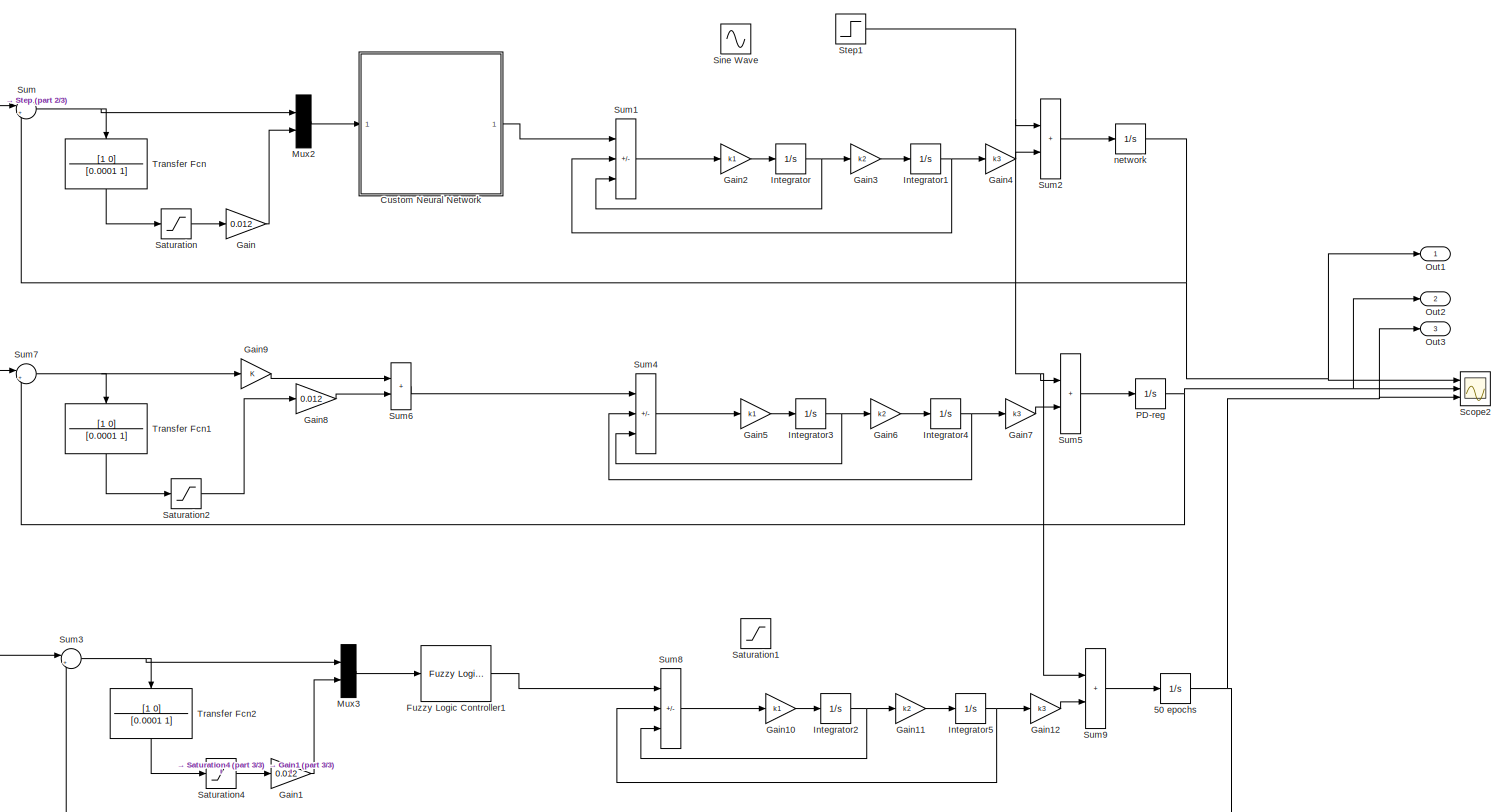
[diagram: root canvas - part 1/3, most of the canvas]
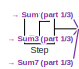
[diagram: root canvas - part 2/3, top left region]
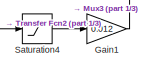
[diagram: root canvas - part 3/3, bottom left region]
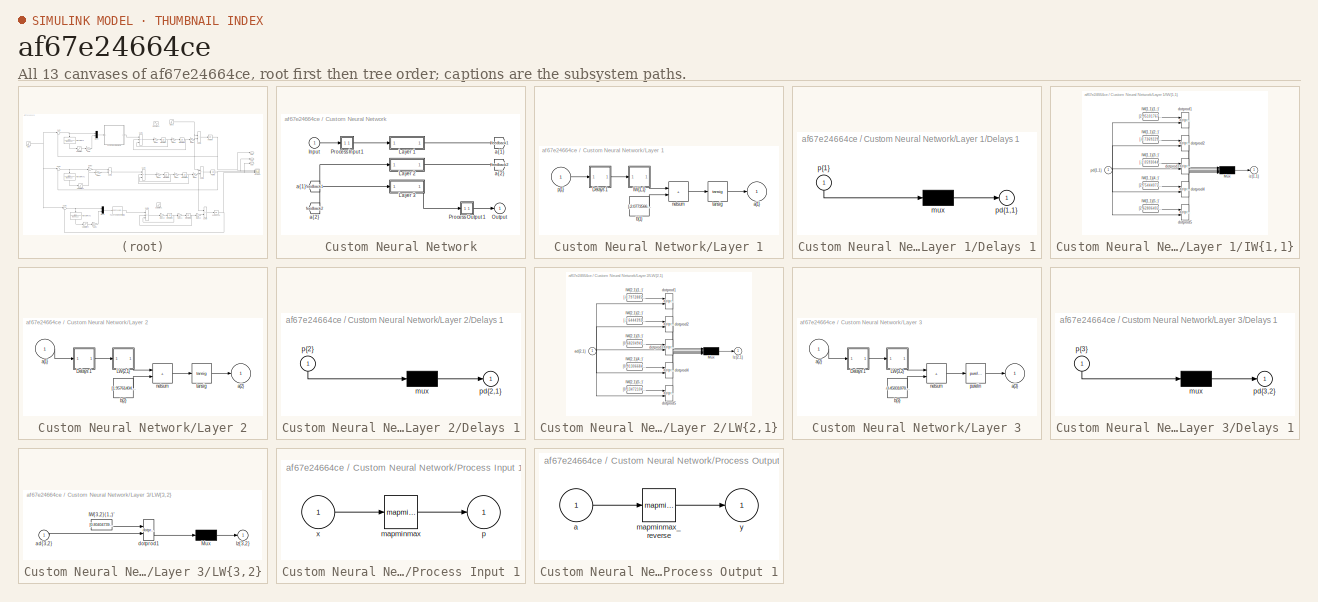
[diagram: thumbnail index - all 13 canvases of the model, root first then tree order]
MODEL slx_af67e24664ce
KIND model
CONFIG AbsTol = auto
CONFIG EnableMultiTasking = off
CONFIG FixedStep = 1e-4
CONFIG MaxStep = auto
CONFIG MinStep = auto
CONFIG RelTol = 1e-3
CONFIG SampleTimeConstraint = Unconstrained
CONFIG SolverName = VariableStepAuto
CONFIG StartTime = 0.0
CONFIG StopTime = 0.7
BLOCK [Integrator] 50 epochs
  Commented = on
  Ports = [1, 1]
BLOCK [SubSystem] Custom Neural Network
  Ports = [1, 1]
  RequestExecContextInheritance = off
BLOCK [From] Custom Neural Network/ a{1} 
  GotoTag = feedback1
BLOCK [From] Custom Neural Network/ a{2} 
  GotoTag = feedback2
BLOCK [Inport] Custom Neural Network/Input
  PortDimensions = 2
BLOCK [SubSystem] Custom Neural Network/Layer 1
  Ports = [1, 1]
  RequestExecContextInheritance = off
BLOCK [SubSystem] Custom Neural Network/Layer 1/Delays 1
  Ports = [1, 1]
  RequestExecContextInheritance = off
BLOCK [Mux] Custom Neural Network/Layer 1/Delays 1/mux
  Inputs = 1
  Ports = [1, 1]
BLOCK [Outport] Custom Neural Network/Layer 1/Delays 1/pd{1,1}
BLOCK [Inport] Custom Neural Network/Layer 1/Delays 1/p{1}
  NameLocation = left
  PortDimensions = 2
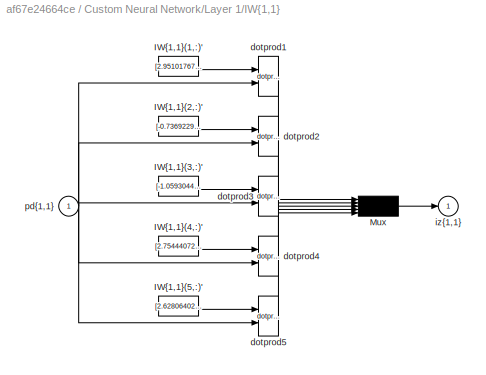
BLOCK [SubSystem] Custom Neural Network/Layer 1/IW{1,1}
  Ports = [1, 1]
  RequestExecContextInheritance = off
BLOCK [Constant] Custom Neural Network/Layer 1/IW{1,1}/IW{1,1}(1,:)'
  Value = [2.951017671237043060727955889888107776641845703125;0.83624442864067194403077110109734348952770233154296875]
BLOCK [Constant] Custom Neural Network/Layer 1/IW{1,1}/IW{1,1}(2,:)'
  Value = [-0.73692291401643783554931133039644919335842132568359375;1.96948474855739874556093127466738224029541015625]
BLOCK [Constant] Custom Neural Network/Layer 1/IW{1,1}/IW{1,1}(3,:)'
  Value = [-1.0593044915856066889858766444376669824123382568359375;1.6448405807777659592971986057818867266178131103515625]
BLOCK [Constant] Custom Neural Network/Layer 1/IW{1,1}/IW{1,1}(4,:)'
  Value = [2.75444072045885857136227059527300298213958740234375;-1.009440193116874606715782647370360791683197021484375]
BLOCK [Constant] Custom Neural Network/Layer 1/IW{1,1}/IW{1,1}(5,:)'
  Value = [2.62806402824123619410556784714572131633758544921875;1.10383319521941469787407186231575906276702880859375]
BLOCK [Mux] Custom Neural Network/Layer 1/IW{1,1}/Mux
  Inputs = 5
  Ports = [5, 1]
BLOCK [Reference] Custom Neural Network/Layer 1/IW{1,1}/dotprod1  REF=neural/Weight Functions/dotprod
  Ports = [2, 1]
  SourceBlock = neural/Weight Functions/dotprod
  SourceProductBaseCode = NN
  SourceType = DOTPROD
BLOCK [Reference] Custom Neural Network/Layer 1/IW{1,1}/dotprod2  REF=neural/Weight Functions/dotprod
  Ports = [2, 1]
  SourceBlock = neural/Weight Functions/dotprod
  SourceProductBaseCode = NN
  SourceType = DOTPROD
BLOCK [Reference] Custom Neural Network/Layer 1/IW{1,1}/dotprod3  REF=neural/Weight Functions/dotprod
  Ports = [2, 1]
  SourceBlock = neural/Weight Functions/dotprod
  SourceProductBaseCode = NN
  SourceType = DOTPROD
BLOCK [Reference] Custom Neural Network/Layer 1/IW{1,1}/dotprod4  REF=neural/Weight Functions/dotprod
  Ports = [2, 1]
  SourceBlock = neural/Weight Functions/dotprod
  SourceProductBaseCode = NN
  SourceType = DOTPROD
BLOCK [Reference] Custom Neural Network/Layer 1/IW{1,1}/dotprod5  REF=neural/Weight Functions/dotprod
  Ports = [2, 1]
  SourceBlock = neural/Weight Functions/dotprod
  SourceProductBaseCode = NN
  SourceType = DOTPROD
BLOCK [Outport] Custom Neural Network/Layer 1/IW{1,1}/iz{1,1}
BLOCK [Inport] Custom Neural Network/Layer 1/IW{1,1}/pd{1,1}
  PortDimensions = 2
BLOCK [Outport] Custom Neural Network/Layer 1/a{1}
  InitialOutput = [0;0;0;0;0]
BLOCK [Constant] Custom Neural Network/Layer 1/b{1}
  Value = [-2.07735668645178161995090704294852912425994873046875;1.96406519819106062385571931372396647930145263671875;-0.208615303188971423775655011922935955226421356201171875;1.606900734332708413631962685030885040760040283203125;3.23070511748839894750062740058638155460357666015625]
BLOCK [Sum] Custom Neural Network/Layer 1/netsum
  IconShape = rectangular
  InputSameDT = on
  Inputs = 2
  OutDataTypeStr = Inherit: Same as first input
  Ports = [2, 1]
  SaturateOnIntegerOverflow = on
BLOCK [Inport] Custom Neural Network/Layer 1/p{1}
  PortDimensions = 2
BLOCK [Reference] Custom Neural Network/Layer 1/tansig  REF=neural/Transfer Functions/tansig
  Ports = [1, 1]
  SourceBlock = neural/Transfer Functions/tansig
  SourceProductBaseCode = NN
  SourceType = TANSIG
BLOCK [SubSystem] Custom Neural Network/Layer 2
  Ports = [1, 1]
  RequestExecContextInheritance = off
BLOCK [SubSystem] Custom Neural Network/Layer 2/Delays 1
  Ports = [1, 1]
  RequestExecContextInheritance = off
BLOCK [Mux] Custom Neural Network/Layer 2/Delays 1/mux
  Inputs = 1
  Ports = [1, 1]
BLOCK [Outport] Custom Neural Network/Layer 2/Delays 1/pd{2,1}
BLOCK [Inport] Custom Neural Network/Layer 2/Delays 1/p{2}
  NameLocation = left
  PortDimensions = 5
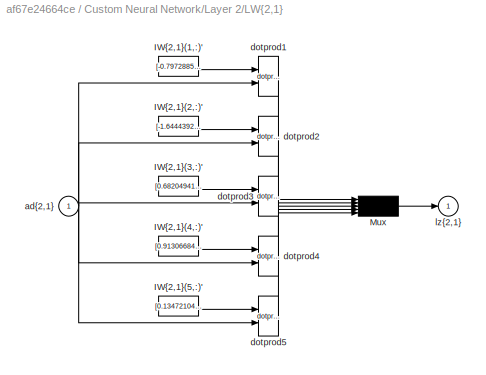
BLOCK [SubSystem] Custom Neural Network/Layer 2/LW{2,1}
  Ports = [1, 1]
  RequestExecContextInheritance = off
BLOCK [Constant] Custom Neural Network/Layer 2/LW{2,1}/IW{2,1}(1,:)'
  Value = [-0.79728853613596128990792522017727605998516082763671875;0.310841683658386991329081183721427805721759796142578125;-0.1520449265423351736803425637845066376030445098876953125;1.4627637117169596248089646906009875237941741943359375;-0.89696378191114478628520600977935828268527984619140625]
BLOCK [Constant] Custom Neural Network/Layer 2/LW{2,1}/IW{2,1}(2,:)'
  Value = [-1.64443925620102060491944939712993800640106201171875;0.9544527634843813501674958388321101665496826171875;-0.591305881399928789932118888827972114086151123046875;-0.92841236542470240156177396784187294542789459228515625;-1.63495941461686555840060464106500148773193359375]
BLOCK [Constant] Custom Neural Network/Layer 2/LW{2,1}/IW{2,1}(3,:)'
  Value = [0.6820494103530945206870228503248654305934906005859375;0.1503276885593718137368313136903452686965465545654296875;0.58642540305399448730128142415196634829044342041015625;1.571446894038057262577012807014398276805877685546875;-0.54654416449461973304124740025145001709461212158203125]
BLOCK [Constant] Custom Neural Network/Layer 2/LW{2,1}/IW{2,1}(4,:)'
  Value = [0.91306684716414243663251681937254033982753753662109375;1.18792269902880942566980593255721032619476318359375;1.5319421879284746967897490321774967014789581298828125;-0.1889887057797368929978887308607227168977260589599609375;0.7735302156303893728050979916588403284549713134765625]
BLOCK [Constant] Custom Neural Network/Layer 2/LW{2,1}/IW{2,1}(5,:)'
  Value = [0.13472104862914779932481224022922106087207794189453125;0.72613412592082882124344678231864236295223236083984375;-0.52226398729854583979914650626596994698047637939453125;-0.65519149195467163426798151704133488237857818603515625;1.3656469102114601188446840751566924154758453369140625]
BLOCK [Mux] Custom Neural Network/Layer 2/LW{2,1}/Mux
  Inputs = 5
  Ports = [5, 1]
BLOCK [Inport] Custom Neural Network/Layer 2/LW{2,1}/ad{2,1}
  PortDimensions = 5
BLOCK [Reference] Custom Neural Network/Layer 2/LW{2,1}/dotprod1  REF=neural/Weight Functions/dotprod
  Ports = [2, 1]
  SourceBlock = neural/Weight Functions/dotprod
  SourceProductBaseCode = NN
  SourceType = DOTPROD
BLOCK [Reference] Custom Neural Network/Layer 2/LW{2,1}/dotprod2  REF=neural/Weight Functions/dotprod
  Ports = [2, 1]
  SourceBlock = neural/Weight Functions/dotprod
  SourceProductBaseCode = NN
  SourceType = DOTPROD
BLOCK [Reference] Custom Neural Network/Layer 2/LW{2,1}/dotprod3  REF=neural/Weight Functions/dotprod
  Ports = [2, 1]
  SourceBlock = neural/Weight Functions/dotprod
  SourceProductBaseCode = NN
  SourceType = DOTPROD
BLOCK [Reference] Custom Neural Network/Layer 2/LW{2,1}/dotprod4  REF=neural/Weight Functions/dotprod
  Ports = [2, 1]
  SourceBlock = neural/Weight Functions/dotprod
  SourceProductBaseCode = NN
  SourceType = DOTPROD
BLOCK [Reference] Custom Neural Network/Layer 2/LW{2,1}/dotprod5  REF=neural/Weight Functions/dotprod
  Ports = [2, 1]
  SourceBlock = neural/Weight Functions/dotprod
  SourceProductBaseCode = NN
  SourceType = DOTPROD
BLOCK [Outport] Custom Neural Network/Layer 2/LW{2,1}/lz{2,1}
BLOCK [Inport] Custom Neural Network/Layer 2/a{1} 
  PortDimensions = 5
BLOCK [Outport] Custom Neural Network/Layer 2/a{2}
  InitialOutput = [0;0;0;0;0]
BLOCK [Constant] Custom Neural Network/Layer 2/b{2}
  Value = [1.9576140475335208623874905242701061069965362548828125;0.421633297016090702324930816757841967046260833740234375;0.202700740941899659741665118417586199939250946044921875;1.1867518349436083635595196028589271008968353271484375;-2.0243971985427986481909101712517440319061279296875]
BLOCK [Sum] Custom Neural Network/Layer 2/netsum
  IconShape = rectangular
  InputSameDT = on
  Inputs = 2
  OutDataTypeStr = Inherit: Same as first input
  Ports = [2, 1]
  SaturateOnIntegerOverflow = on
BLOCK [Reference] Custom Neural Network/Layer 2/tansig  REF=neural/Transfer Functions/tansig
  Ports = [1, 1]
  SourceBlock = neural/Transfer Functions/tansig
  SourceProductBaseCode = NN
  SourceType = TANSIG
BLOCK [SubSystem] Custom Neural Network/Layer 3
  Ports = [1, 1]
  RequestExecContextInheritance = off
BLOCK [SubSystem] Custom Neural Network/Layer 3/Delays 1
  Ports = [1, 1]
  RequestExecContextInheritance = off
BLOCK [Mux] Custom Neural Network/Layer 3/Delays 1/mux
  Inputs = 1
  Ports = [1, 1]
BLOCK [Outport] Custom Neural Network/Layer 3/Delays 1/pd{3,2}
BLOCK [Inport] Custom Neural Network/Layer 3/Delays 1/p{3}
  NameLocation = left
  PortDimensions = 5
BLOCK [SubSystem] Custom Neural Network/Layer 3/LW{3,2}
  Ports = [1, 1]
  RequestExecContextInheritance = off
BLOCK [Constant] Custom Neural Network/Layer 3/LW{3,2}/IW{3,2}(1,:)'
  Value = [0.80404739059569119152826033314340747892856597900390625;-0.591097353395705571443841108703054487705230712890625;-0.1768445181385183972988528466885327361524105072021484375;0.4597468355824052554936542946961708366870880126953125;1.3416315315107010253115049636107869446277618408203125]
BLOCK [Mux] Custom Neural Network/Layer 3/LW{3,2}/Mux
  Inputs = 1
  Ports = [1, 1]
BLOCK [Inport] Custom Neural Network/Layer 3/LW{3,2}/ad{3,2}
  PortDimensions = 5
BLOCK [Reference] Custom Neural Network/Layer 3/LW{3,2}/dotprod1  REF=neural/Weight Functions/dotprod
  Ports = [2, 1]
  SourceBlock = neural/Weight Functions/dotprod
  SourceProductBaseCode = NN
  SourceType = DOTPROD
BLOCK [Outport] Custom Neural Network/Layer 3/LW{3,2}/lz{3,2}
BLOCK [Inport] Custom Neural Network/Layer 3/a{2} 
  PortDimensions = 5
BLOCK [Outport] Custom Neural Network/Layer 3/a{3}
  InitialOutput = 0
BLOCK [Constant] Custom Neural Network/Layer 3/b{3}
  Value = -0.45831878805649461927629317870014347136020660400390625
BLOCK [Sum] Custom Neural Network/Layer 3/netsum
  IconShape = rectangular
  InputSameDT = on
  Inputs = 2
  OutDataTypeStr = Inherit: Same as first input
  Ports = [2, 1]
  SaturateOnIntegerOverflow = on
BLOCK [Reference] Custom Neural Network/Layer 3/purelin  REF=neural/Transfer Functions/purelin
  Ports = [1, 1]
  SourceBlock = neural/Transfer Functions/purelin
  SourceProductBaseCode = NN
  SourceType = PURELIN
BLOCK [Outport] Custom Neural Network/Output
  InitialOutput = 0
BLOCK [SubSystem] Custom Neural Network/Process Input 1
  Ports = [1, 1]
  RequestExecContextInheritance = off
BLOCK [Reference] Custom Neural Network/Process Input 1/mapminmax  REF=neural/Processing Functions/mapminmax
  Ports = [1, 1]
  SourceBlock = neural/Processing Functions/mapminmax
  SourceProductBaseCode = NN
  SourceType = MAPMINMAX Preprocess
BLOCK [Outport] Custom Neural Network/Process Input 1/p
  PortDimensions = 2
BLOCK [Inport] Custom Neural Network/Process Input 1/x
  PortDimensions = 2
BLOCK [SubSystem] Custom Neural Network/Process Output 1
  Ports = [1, 1]
  RequestExecContextInheritance = off
BLOCK [Inport] Custom Neural Network/Process Output 1/a
  PortDimensions = 1
BLOCK [Reference] Custom Neural Network/Process Output 1/mapminmax_reverse  REF=neural/Processing Functions/mapminmax_reverse
  Ports = [1, 1]
  SourceBlock = neural/Processing Functions/mapminmax_reverse
  SourceProductBaseCode = NN
  SourceType = MAPMINMAX Reverse Process
BLOCK [Outport] Custom Neural Network/Process Output 1/y
  PortDimensions = 1
BLOCK [Goto] Custom Neural Network/a{1}
  GotoTag = feedback1
BLOCK [Goto] Custom Neural Network/a{2}
  GotoTag = feedback2
BLOCK [Reference] Fuzzy Logic Controller1  REF=fuzblock/Fuzzy Logic   (lib defined in mdl_858b3b3e7478)
Controller
  Commented = on
  Ports = [1, 1]
  SourceBlock = fuzblock/Fuzzy Logic \nController
  SourceProductBaseCode = FL
  SourceType = Fuzzy Inference System
BLOCK [Gain] Gain
  Gain = 0.012
BLOCK [Gain] Gain1
  Commented = on
  Gain = 0.012
BLOCK [Gain] Gain10
  Commented = on
  Gain = k1
BLOCK [Gain] Gain11
  Commented = on
  Gain = k2
BLOCK [Gain] Gain12
  Commented = on
  Gain = k3
BLOCK [Gain] Gain2
  Gain = k1
BLOCK [Gain] Gain3
  Gain = k2
BLOCK [Gain] Gain4
  Gain = k3
BLOCK [Gain] Gain5
  Gain = k1
BLOCK [Gain] Gain6
  Gain = k2
BLOCK [Gain] Gain7
  Gain = k3
BLOCK [Gain] Gain8
  Gain = 0.012
BLOCK [Gain] Gain9
BLOCK [Integrator] Integrator
  Ports = [1, 1]
BLOCK [Integrator] Integrator1
  Ports = [1, 1]
BLOCK [Integrator] Integrator2
  Commented = on
  Ports = [1, 1]
BLOCK [Integrator] Integrator3
  Ports = [1, 1]
BLOCK [Integrator] Integrator4
  Ports = [1, 1]
BLOCK [Integrator] Integrator5
  Commented = on
  Ports = [1, 1]
BLOCK [Mux] Mux2
  Inputs = 2
  Ports = [2, 1]
BLOCK [Mux] Mux3
  Commented = on
  Inputs = 2
  Ports = [2, 1]
BLOCK [Outport] Out1
BLOCK [Outport] Out2
  Port = 2
BLOCK [Outport] Out3
  Port = 3
BLOCK [Integrator] PD-reg
  Ports = [1, 1]
BLOCK [Saturate] Saturation
BLOCK [Saturate] Saturation1
  Commented = on
  LinearizeAsGain = off
  LowerLimit = -0.15
  UpperLimit = 0.15
BLOCK [Saturate] Saturation2
BLOCK [Saturate] Saturation4
  Commented = on
BLOCK [Scope] Scope2
  Floating = off
  NumInputPorts = 3
  Ports = [3]
  ScopeSpecificationString = Simulink.scopes.TimeScopeBlockCfg('CurrentConfiguration', extmgr.ConfigurationSet(extmgr.Configuration('Core','General UI',true,'FigureColor',[1 1 1]),extmgr.Configuration('Core','Source UI',true),extmgr.Configuration('Sources','WiredSimulink',true,'DataLoggingVariableName','ScopeData1'),extmgr.Configuration('Visuals','Time Domain',true,'SerializedDisplays',{struct('MinYLimReal','-4.25762','MaxYLi...<+1720ch>
BLOCK [Sin] Sine Wave
  Amplitude = 20
  Commented = on
  Frequency = 80
  Phase = pi/3
  Ports = [0, 1]
  SampleTime = 0
BLOCK [Step] Step
  SampleTime = 0
  Time = 0
BLOCK [Step] Step1
  After = 50
  SampleTime = 0
  Time = 0
BLOCK [Sum] Sum
  Inputs = |+-
  Ports = [2, 1]
BLOCK [Sum] Sum1
  IconShape = rectangular
  Inputs = +--
  Ports = [3, 1]
BLOCK [Sum] Sum2
  IconShape = rectangular
  Ports = [2, 1]
BLOCK [Sum] Sum3
  Commented = on
  Inputs = |+-
  Ports = [2, 1]
BLOCK [Sum] Sum4
  IconShape = rectangular
  Inputs = +--
  Ports = [3, 1]
BLOCK [Sum] Sum5
  IconShape = rectangular
  Ports = [2, 1]
BLOCK [Sum] Sum6
  IconShape = rectangular
  Ports = [2, 1]
BLOCK [Sum] Sum7
  Inputs = |+-
  Ports = [2, 1]
BLOCK [Sum] Sum8
  Commented = on
  IconShape = rectangular
  Inputs = +--
  Ports = [3, 1]
BLOCK [Sum] Sum9
  Commented = on
  IconShape = rectangular
  Ports = [2, 1]
BLOCK [TransferFcn] Transfer Fcn
  Denominator = [0.0001 1]
  NameLocation = left
  Numerator = [1 0]
BLOCK [TransferFcn] Transfer Fcn1
  Denominator = [0.0001 1]
  NameLocation = left
  Numerator = [1 0]
BLOCK [TransferFcn] Transfer Fcn2
  Commented = on
  Denominator = [0.0001 1]
  NameLocation = left
  Numerator = [1 0]
BLOCK [Integrator] network
  Ports = [1, 1]
NET 50 epochs:1 -> Out3:1, Scope2:3, Sum3:2
LINE Custom Neural Network/ a{1} :1 -> Custom Neural Network/Layer 2:1
LINE Custom Neural Network/ a{2} :1 -> Custom Neural Network/Layer 3:1
LINE Custom Neural Network/Input:1 -> Custom Neural Network/Process Input 1:1
LINE Custom Neural Network/Layer 1/Delays 1/mux:1 -> Custom Neural Network/Layer 1/Delays 1/pd{1,1}:1
LINE Custom Neural Network/Layer 1/Delays 1/p{1}:1 -> Custom Neural Network/Layer 1/Delays 1/mux:1
LINE Custom Neural Network/Layer 1/Delays 1:1 -> Custom Neural Network/Layer 1/IW{1,1}:1
LINE Custom Neural Network/Layer 1/IW{1,1}/IW{1,1}(1,:)':1 -> Custom Neural Network/Layer 1/IW{1,1}/dotprod1:1
LINE Custom Neural Network/Layer 1/IW{1,1}/IW{1,1}(2,:)':1 -> Custom Neural Network/Layer 1/IW{1,1}/dotprod2:1
LINE Custom Neural Network/Layer 1/IW{1,1}/IW{1,1}(3,:)':1 -> Custom Neural Network/Layer 1/IW{1,1}/dotprod3:1
LINE Custom Neural Network/Layer 1/IW{1,1}/IW{1,1}(4,:)':1 -> Custom Neural Network/Layer 1/IW{1,1}/dotprod4:1
LINE Custom Neural Network/Layer 1/IW{1,1}/IW{1,1}(5,:)':1 -> Custom Neural Network/Layer 1/IW{1,1}/dotprod5:1
LINE Custom Neural Network/Layer 1/IW{1,1}/Mux:1 -> Custom Neural Network/Layer 1/IW{1,1}/iz{1,1}:1
LINE Custom Neural Network/Layer 1/IW{1,1}/dotprod1:1 -> Custom Neural Network/Layer 1/IW{1,1}/Mux:1
LINE Custom Neural Network/Layer 1/IW{1,1}/dotprod2:1 -> Custom Neural Network/Layer 1/IW{1,1}/Mux:2
LINE Custom Neural Network/Layer 1/IW{1,1}/dotprod3:1 -> Custom Neural Network/Layer 1/IW{1,1}/Mux:3
LINE Custom Neural Network/Layer 1/IW{1,1}/dotprod4:1 -> Custom Neural Network/Layer 1/IW{1,1}/Mux:4
LINE Custom Neural Network/Layer 1/IW{1,1}/dotprod5:1 -> Custom Neural Network/Layer 1/IW{1,1}/Mux:5
NET Custom Neural Network/Layer 1/IW{1,1}/pd{1,1}:1 -> Custom Neural Network/Layer 1/IW{1,1}/dotprod1:2, Custom Neural Network/Layer 1/IW{1,1}/dotprod2:2, Custom Neural Network/Layer 1/IW{1,1}/dotprod3:2, Custom Neural Network/Layer 1/IW{1,1}/dotprod4:2, Custom Neural Network/Layer 1/IW{1,1}/dotprod5:2
LINE Custom Neural Network/Layer 1/IW{1,1}:1 -> Custom Neural Network/Layer 1/netsum:1
LINE Custom Neural Network/Layer 1/b{1}:1 -> Custom Neural Network/Layer 1/netsum:2
LINE Custom Neural Network/Layer 1/netsum:1 -> Custom Neural Network/Layer 1/tansig:1
LINE Custom Neural Network/Layer 1/p{1}:1 -> Custom Neural Network/Layer 1/Delays 1:1
LINE Custom Neural Network/Layer 1/tansig:1 -> Custom Neural Network/Layer 1/a{1}:1
LINE Custom Neural Network/Layer 1:1 -> Custom Neural Network/a{1}:1
LINE Custom Neural Network/Layer 2/Delays 1/mux:1 -> Custom Neural Network/Layer 2/Delays 1/pd{2,1}:1
LINE Custom Neural Network/Layer 2/Delays 1/p{2}:1 -> Custom Neural Network/Layer 2/Delays 1/mux:1
LINE Custom Neural Network/Layer 2/Delays 1:1 -> Custom Neural Network/Layer 2/LW{2,1}:1
LINE Custom Neural Network/Layer 2/LW{2,1}/IW{2,1}(1,:)':1 -> Custom Neural Network/Layer 2/LW{2,1}/dotprod1:1
LINE Custom Neural Network/Layer 2/LW{2,1}/IW{2,1}(2,:)':1 -> Custom Neural Network/Layer 2/LW{2,1}/dotprod2:1
LINE Custom Neural Network/Layer 2/LW{2,1}/IW{2,1}(3,:)':1 -> Custom Neural Network/Layer 2/LW{2,1}/dotprod3:1
LINE Custom Neural Network/Layer 2/LW{2,1}/IW{2,1}(4,:)':1 -> Custom Neural Network/Layer 2/LW{2,1}/dotprod4:1
LINE Custom Neural Network/Layer 2/LW{2,1}/IW{2,1}(5,:)':1 -> Custom Neural Network/Layer 2/LW{2,1}/dotprod5:1
LINE Custom Neural Network/Layer 2/LW{2,1}/Mux:1 -> Custom Neural Network/Layer 2/LW{2,1}/lz{2,1}:1
NET Custom Neural Network/Layer 2/LW{2,1}/ad{2,1}:1 -> Custom Neural Network/Layer 2/LW{2,1}/dotprod1:2, Custom Neural Network/Layer 2/LW{2,1}/dotprod2:2, Custom Neural Network/Layer 2/LW{2,1}/dotprod3:2, Custom Neural Network/Layer 2/LW{2,1}/dotprod4:2, Custom Neural Network/Layer 2/LW{2,1}/dotprod5:2
LINE Custom Neural Network/Layer 2/LW{2,1}/dotprod1:1 -> Custom Neural Network/Layer 2/LW{2,1}/Mux:1
LINE Custom Neural Network/Layer 2/LW{2,1}/dotprod2:1 -> Custom Neural Network/Layer 2/LW{2,1}/Mux:2
LINE Custom Neural Network/Layer 2/LW{2,1}/dotprod3:1 -> Custom Neural Network/Layer 2/LW{2,1}/Mux:3
LINE Custom Neural Network/Layer 2/LW{2,1}/dotprod4:1 -> Custom Neural Network/Layer 2/LW{2,1}/Mux:4
LINE Custom Neural Network/Layer 2/LW{2,1}/dotprod5:1 -> Custom Neural Network/Layer 2/LW{2,1}/Mux:5
LINE Custom Neural Network/Layer 2/LW{2,1}:1 -> Custom Neural Network/Layer 2/netsum:1
LINE Custom Neural Network/Layer 2/a{1} :1 -> Custom Neural Network/Layer 2/Delays 1:1
LINE Custom Neural Network/Layer 2/b{2}:1 -> Custom Neural Network/Layer 2/netsum:2
LINE Custom Neural Network/Layer 2/netsum:1 -> Custom Neural Network/Layer 2/tansig:1
LINE Custom Neural Network/Layer 2/tansig:1 -> Custom Neural Network/Layer 2/a{2}:1
LINE Custom Neural Network/Layer 2:1 -> Custom Neural Network/a{2}:1
LINE Custom Neural Network/Layer 3/Delays 1/mux:1 -> Custom Neural Network/Layer 3/Delays 1/pd{3,2}:1
LINE Custom Neural Network/Layer 3/Delays 1/p{3}:1 -> Custom Neural Network/Layer 3/Delays 1/mux:1
LINE Custom Neural Network/Layer 3/Delays 1:1 -> Custom Neural Network/Layer 3/LW{3,2}:1
LINE Custom Neural Network/Layer 3/LW{3,2}/IW{3,2}(1,:)':1 -> Custom Neural Network/Layer 3/LW{3,2}/dotprod1:1
LINE Custom Neural Network/Layer 3/LW{3,2}/Mux:1 -> Custom Neural Network/Layer 3/LW{3,2}/lz{3,2}:1
LINE Custom Neural Network/Layer 3/LW{3,2}/ad{3,2}:1 -> Custom Neural Network/Layer 3/LW{3,2}/dotprod1:2
LINE Custom Neural Network/Layer 3/LW{3,2}/dotprod1:1 -> Custom Neural Network/Layer 3/LW{3,2}/Mux:1
LINE Custom Neural Network/Layer 3/LW{3,2}:1 -> Custom Neural Network/Layer 3/netsum:1
LINE Custom Neural Network/Layer 3/a{2} :1 -> Custom Neural Network/Layer 3/Delays 1:1
LINE Custom Neural Network/Layer 3/b{3}:1 -> Custom Neural Network/Layer 3/netsum:2
LINE Custom Neural Network/Layer 3/netsum:1 -> Custom Neural Network/Layer 3/purelin:1
LINE Custom Neural Network/Layer 3/purelin:1 -> Custom Neural Network/Layer 3/a{3}:1
LINE Custom Neural Network/Layer 3:1 -> Custom Neural Network/Process Output 1:1
LINE Custom Neural Network/Process Input 1/mapminmax:1 -> Custom Neural Network/Process Input 1/p:1
LINE Custom Neural Network/Process Input 1/x:1 -> Custom Neural Network/Process Input 1/mapminmax:1
LINE Custom Neural Network/Process Input 1:1 -> Custom Neural Network/Layer 1:1
LINE Custom Neural Network/Process Output 1/a:1 -> Custom Neural Network/Process Output 1/mapminmax_reverse:1
LINE Custom Neural Network/Process Output 1/mapminmax_reverse:1 -> Custom Neural Network/Process Output 1/y:1
LINE Custom Neural Network/Process Output 1:1 -> Custom Neural Network/Output:1
LINE Custom Neural Network:1 -> Sum1:1
LINE Fuzzy Logic Controller1:1 -> Sum8:1
LINE Gain10:1 -> Integrator2:1
LINE Gain11:1 -> Integrator5:1
LINE Gain12:1 -> Sum9:2
LINE Gain1:1 -> Mux3:2
LINE Gain2:1 -> Integrator:1
LINE Gain3:1 -> Integrator1:1
LINE Gain4:1 -> Sum2:2
LINE Gain5:1 -> Integrator3:1
LINE Gain6:1 -> Integrator4:1
LINE Gain7:1 -> Sum5:2
LINE Gain8:1 -> Sum6:2
LINE Gain9:1 -> Sum6:1
LINE Gain:1 -> Mux2:2
NET Integrator1:1 -> Gain4:1, Sum1:2
NET Integrator2:1 -> Gain11:1, Sum8:3
NET Integrator3:1 -> Gain6:1, Sum4:3
NET Integrator4:1 -> Gain7:1, Sum4:2
NET Integrator5:1 -> Gain12:1, Sum8:2
NET Integrator:1 -> Gain3:1, Sum1:3
LINE Mux2:1 -> Custom Neural Network:1
LINE Mux3:1 -> Fuzzy Logic Controller1:1
NET PD-reg:1 -> Out2:1, Scope2:2, Sum7:2
LINE Saturation2:1 -> Gain8:1
LINE Saturation4:1 -> Gain1:1
LINE Saturation:1 -> Gain:1
NET Step1:1 -> Sum2:1, Sum5:1, Sum9:1
NET Step:1 -> Sum3:1, Sum7:1, Sum:1
LINE Sum1:1 -> Gain2:1
LINE Sum2:1 -> network:1
NET Sum3:1 -> Mux3:1, Transfer Fcn2:1
LINE Sum4:1 -> Gain5:1
LINE Sum5:1 -> PD-reg:1
LINE Sum6:1 -> Sum4:1
NET Sum7:1 -> Gain9:1, Transfer Fcn1:1
LINE Sum8:1 -> Gain10:1
LINE Sum9:1 -> 50 epochs:1
NET Sum:1 -> Mux2:1, Transfer Fcn:1
LINE Transfer Fcn1:1 -> Saturation2:1
LINE Transfer Fcn2:1 -> Saturation4:1
LINE Transfer Fcn:1 -> Saturation:1
NET network:1 -> Out1:1, Scope2:1, Sum:2
note: NET lines group one-source signal fan-out (src -> all destinations, sorted); 1:1 wires keep LINE
